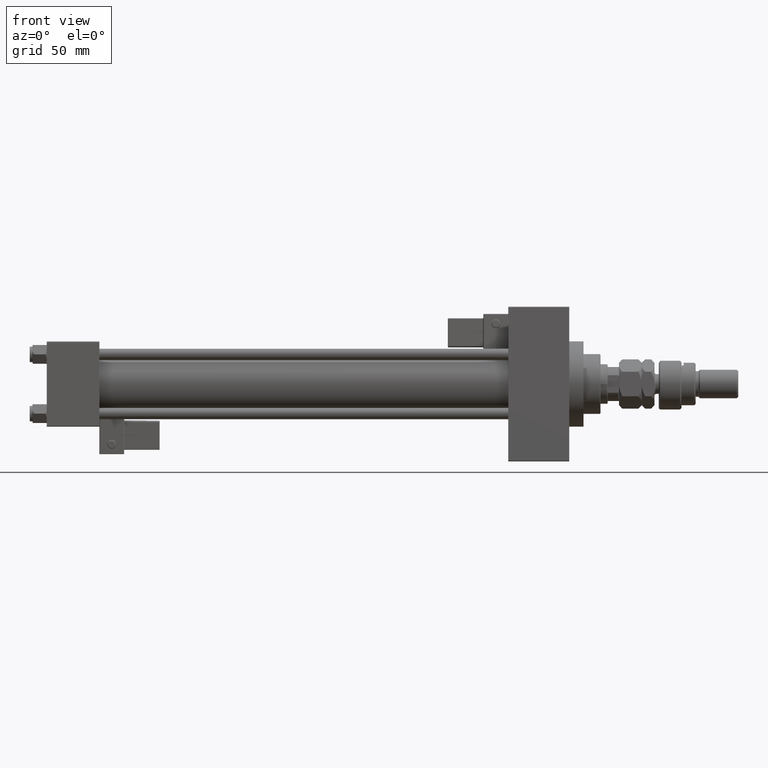
[diagram: clean part render]
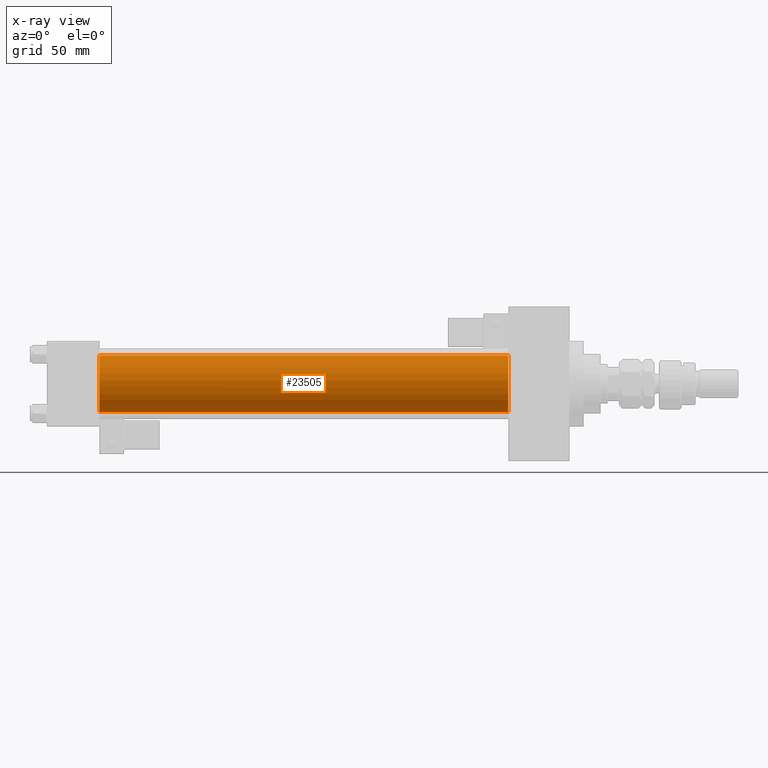
[diagram: x-ray — body ghosted, one internal face saturated and labeled with its STEP entity id]
A machine part, front view, then the same camera in x-ray: the body is ghosted and one INTERNAL B-rep face — a face not visible from any outside direction — is saturated and labeled: STEP entity #23505.
In plain terms, the highlighted cylindrical surface (edge-blend (fillet) strip) has radius 20 mm, axis along (-1, -0, -0).
Its self-contained STEP definition (entity closure, byte-faithful):
#3250 = CARTESIAN_POINT ( 'NONE',  ( 37.00000000000000000, -1.527916156705042519E-16, -20.00000000000000000 ) ) ;
#5231 = CARTESIAN_POINT ( 'NONE',  ( 324.9999999999999432, -2.602085213965210642E-15, 0.000000000000000000 ) ) ;
#6869 = VERTEX_POINT ( 'NONE', #13788 ) ;
#7927 = DIRECTION ( 'NONE',  ( -1.000000000000000000, -0.000000000000000000, -0.000000000000000000 ) ) ;
#9597 = VECTOR ( 'NONE', #7927, 1000.000000000000000 ) ;
#10045 = VECTOR ( 'NONE', #41576, 1000.000000000000000 ) ;
#11601 = CARTESIAN_POINT ( 'NONE',  ( 324.9999999999999432, -2.602085213965210642E-15, 20.00000000000000000 ) ) ;
#13788 = CARTESIAN_POINT ( 'NONE',  ( 37.00000000000000000, -2.602085213965210642E-15, 20.00000000000000000 ) ) ;
#14297 = FACE_OUTER_BOUND ( 'NONE', #53091, .T. ) ;
#15936 = ORIENTED_EDGE ( 'NONE', *, *, #35488, .T. ) ;
#17266 = LINE ( 'NONE', #34127, #10045 ) ;
#20016 = DIRECTION ( 'NONE',  ( 1.000000000000000000, 0.000000000000000000, 0.000000000000000000 ) ) ;
#20362 = LINE ( 'NONE', #28931, #9597 ) ;
#20798 = ORIENTED_EDGE ( 'NONE', *, *, #48099, .F. ) ;
#21683 = ORIENTED_EDGE ( 'NONE', *, *, #32464, .T. ) ;
#22565 = DIRECTION ( 'NONE',  ( 0.000000000000000000, 0.000000000000000000, 1.000000000000000000 ) ) ;
#23505 = ADVANCED_FACE ( 'NONE', ( #14297 ), #39162, .F. ) ;
#24726 = DIRECTION ( 'NONE',  ( 0.000000000000000000, 0.000000000000000000, -1.000000000000000000 ) ) ;
#28318 = CARTESIAN_POINT ( 'NONE',  ( 37.00000000000000000, -2.602085213965210642E-15, 0.000000000000000000 ) ) ;
#28931 = CARTESIAN_POINT ( 'NONE',  ( 324.9999999999999432, -1.527916156705042519E-16, -20.00000000000000000 ) ) ;
#31069 = VERTEX_POINT ( 'NONE', #11601 ) ;
#31150 = CARTESIAN_POINT ( 'NONE',  ( 324.9999999999999432, -2.602085213965210642E-15, 0.000000000000000000 ) ) ;
#32464 = EDGE_CURVE ( 'NONE', #31069, #46270, #36847, .T. ) ;
#33612 = VERTEX_POINT ( 'NONE', #3250 ) ;
#34127 = CARTESIAN_POINT ( 'NONE',  ( 324.9999999999999432, -2.602085213965210642E-15, 20.00000000000000000 ) ) ;
#35488 = EDGE_CURVE ( 'NONE', #46270, #33612, #20362, .T. ) ;
#36847 = CIRCLE ( 'NONE', #38632, 20.00000000000000000 ) ;
#37534 = ORIENTED_EDGE ( 'NONE', *, *, #41590, .F. ) ;
#38632 = AXIS2_PLACEMENT_3D ( 'NONE', #5231, #51899, #39464 ) ;
#39162 = CYLINDRICAL_SURFACE ( 'NONE', #53943, 20.00000000000000000 ) ;
#39464 = DIRECTION ( 'NONE',  ( 0.000000000000000000, 0.000000000000000000, -1.000000000000000000 ) ) ;
#39975 = DIRECTION ( 'NONE',  ( -1.000000000000000000, -0.000000000000000000, -0.000000000000000000 ) ) ;
#41576 = DIRECTION ( 'NONE',  ( -1.000000000000000000, -0.000000000000000000, -0.000000000000000000 ) ) ;
#41590 = EDGE_CURVE ( 'NONE', #6869, #33612, #53001, .T. ) ;
#43274 = AXIS2_PLACEMENT_3D ( 'NONE', #28318, #20016, #24726 ) ;
#46270 = VERTEX_POINT ( 'NONE', #46915 ) ;
#46915 = CARTESIAN_POINT ( 'NONE',  ( 324.9999999999999432, -1.527916156705042519E-16, -20.00000000000000000 ) ) ;
#48099 = EDGE_CURVE ( 'NONE', #31069, #6869, #17266, .T. ) ;
#51899 = DIRECTION ( 'NONE',  ( 1.000000000000000000, 0.000000000000000000, 0.000000000000000000 ) ) ;
#53001 = CIRCLE ( 'NONE', #43274, 20.00000000000000000 ) ;
#53091 = EDGE_LOOP ( 'NONE', ( #21683, #15936, #37534, #20798 ) ) ;
#53943 = AXIS2_PLACEMENT_3D ( 'NONE', #31150, #39975, #22565 ) ;